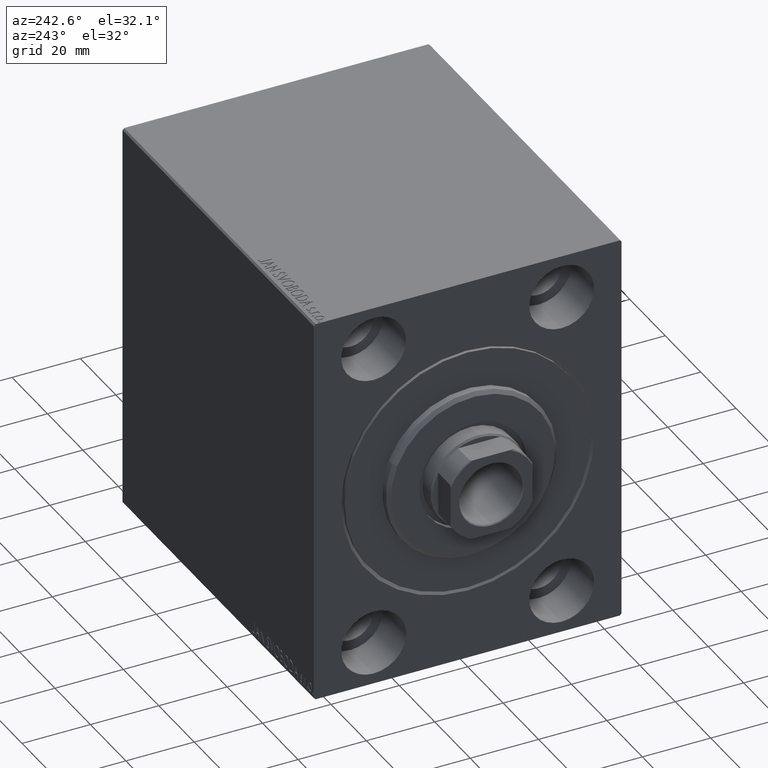
[diagram: clean part render]
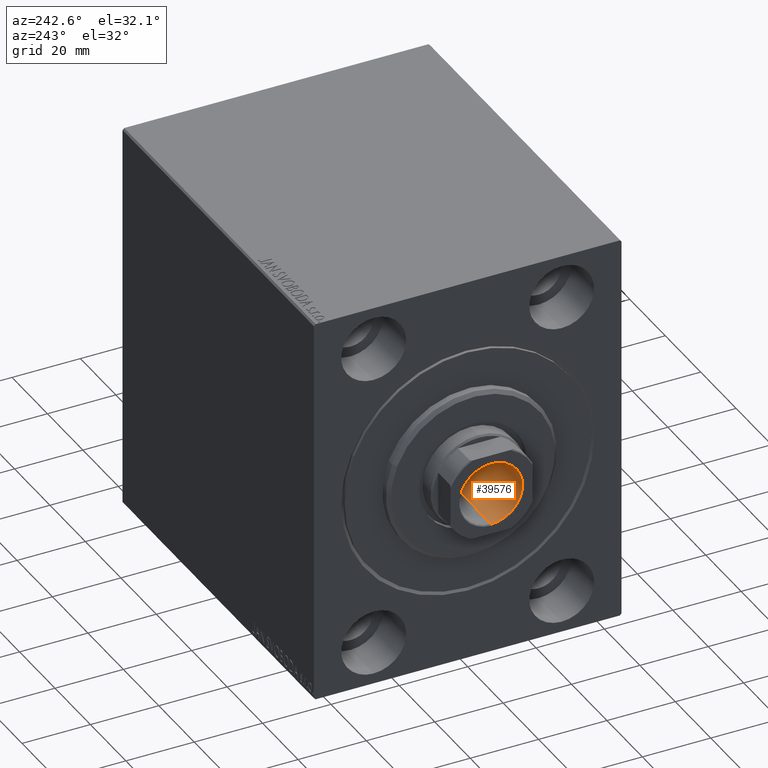
[diagram: same view with one face highlighted and labeled with its STEP entity id]
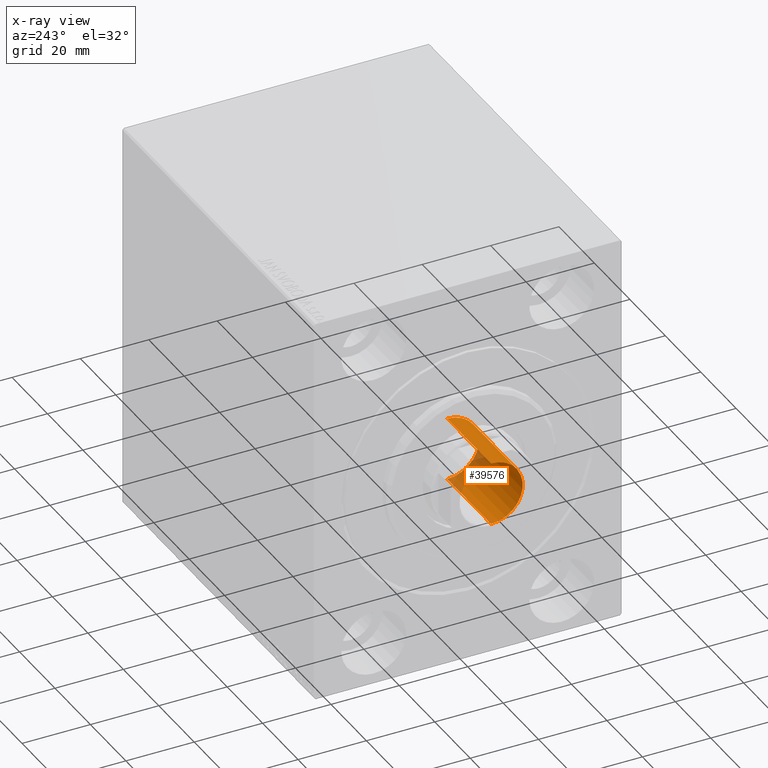
[diagram: x-ray of the same camera — body ghosted, the highlighted face saturated]
A machine part, auxiliary view. The second image highlights one B-rep face of the part: STEP entity #39576.
The next image is the same camera in x-ray: the body ghosted, the highlighted face saturated — about 13% of this face is hidden behind the body in this view.
In plain terms, the highlighted cylindrical surface (edge-blend (fillet) strip) has radius 9.25 mm, axis along (-1, 0, 0).
Its self-contained STEP definition (entity closure, byte-faithful):
#1 = AXIS2_PLACEMENT_3D ( 'NONE', #16630, #26607, #15810 ) ;
#1258 = DIRECTION ( 'NONE',  ( 0.000000000000000000, 0.000000000000000000, 1.000000000000000000 ) ) ;
#2421 = EDGE_LOOP ( 'NONE', ( #13683, #15763, #41772, #7978 ) ) ;
#3451 = CIRCLE ( 'NONE', #6988, 9.249999999999994671 ) ;
#3539 = CIRCLE ( 'NONE', #1, 9.249999999999994671 ) ;
#3600 = DIRECTION ( 'NONE',  ( -0.000000000000000000, -0.000000000000000000, 1.000000000000000000 ) ) ;
#4037 = DIRECTION ( 'NONE',  ( -0.000000000000000000, -0.000000000000000000, 1.000000000000000000 ) ) ;
#6857 = EDGE_CURVE ( 'NONE', #31931, #42515, #12709, .T. ) ;
#6988 = AXIS2_PLACEMENT_3D ( 'NONE', #31597, #1258, #41797 ) ;
#7978 = ORIENTED_EDGE ( 'NONE', *, *, #39521, .F. ) ;
#12709 = LINE ( 'NONE', #26227, #16574 ) ;
#13303 = VERTEX_POINT ( 'NONE', #34233 ) ;
#13683 = ORIENTED_EDGE ( 'NONE', *, *, #32410, .F. ) ;
#14984 = CARTESIAN_POINT ( 'NONE',  ( 9.249999999999994671, 0.000000000000000000, 79.00000000000001421 ) ) ;
#15763 = ORIENTED_EDGE ( 'NONE', *, *, #6857, .T. ) ;
#15810 = DIRECTION ( 'NONE',  ( 1.000000000000000000, 0.000000000000000000, 0.000000000000000000 ) ) ;
#16574 = VECTOR ( 'NONE', #25999, 1000.000000000000000 ) ;
#16630 = CARTESIAN_POINT ( 'NONE',  ( 0.000000000000000000, 0.000000000000000000, 79.00000000000001421 ) ) ;
#20873 = LINE ( 'NONE', #23765, #20982 ) ;
#20982 = VECTOR ( 'NONE', #3600, 1000.000000000000000 ) ;
#23765 = CARTESIAN_POINT ( 'NONE',  ( 9.249999999999994671, 0.000000000000000000, 104.0000000000000142 ) ) ;
#25999 = DIRECTION ( 'NONE',  ( -0.000000000000000000, -0.000000000000000000, 1.000000000000000000 ) ) ;
#26227 = CARTESIAN_POINT ( 'NONE',  ( -9.249999999999994671, 1.132798289211300909E-15, 104.0000000000000142 ) ) ;
#26607 = DIRECTION ( 'NONE',  ( -0.000000000000000000, -0.000000000000000000, 1.000000000000000000 ) ) ;
#27300 = FACE_OUTER_BOUND ( 'NONE', #2421, .T. ) ;
#27741 = CYLINDRICAL_SURFACE ( 'NONE', #38697, 9.249999999999994671 ) ;
#27786 = EDGE_CURVE ( 'NONE', #42515, #13303, #3451, .T. ) ;
#27796 = VERTEX_POINT ( 'NONE', #14984 ) ;
#31597 = CARTESIAN_POINT ( 'NONE',  ( 0.000000000000000000, 0.000000000000000000, 103.6999999999999886 ) ) ;
#31931 = VERTEX_POINT ( 'NONE', #35631 ) ;
#32410 = EDGE_CURVE ( 'NONE', #31931, #27796, #3539, .T. ) ;
#34233 = CARTESIAN_POINT ( 'NONE',  ( 9.249999999999994671, 0.000000000000000000, 103.6999999999999886 ) ) ;
#35631 = CARTESIAN_POINT ( 'NONE',  ( -9.249999999999994671, 1.132798289211300909E-15, 79.00000000000001421 ) ) ;
#38697 = AXIS2_PLACEMENT_3D ( 'NONE', #40819, #4037, #41251 ) ;
#39472 = CARTESIAN_POINT ( 'NONE',  ( -9.249999999999994671, 1.132798289211300909E-15, 103.6999999999999886 ) ) ;
#39521 = EDGE_CURVE ( 'NONE', #27796, #13303, #20873, .T. ) ;
#39576 = ADVANCED_FACE ( 'NONE', ( #27300 ), #27741, .F. ) ;
#40819 = CARTESIAN_POINT ( 'NONE',  ( 0.000000000000000000, 0.000000000000000000, 104.0000000000000142 ) ) ;
#41251 = DIRECTION ( 'NONE',  ( 1.000000000000000000, 0.000000000000000000, 0.000000000000000000 ) ) ;
#41772 = ORIENTED_EDGE ( 'NONE', *, *, #27786, .T. ) ;
#41797 = DIRECTION ( 'NONE',  ( 1.000000000000000000, 0.000000000000000000, 0.000000000000000000 ) ) ;
#42515 = VERTEX_POINT ( 'NONE', #39472 ) ;